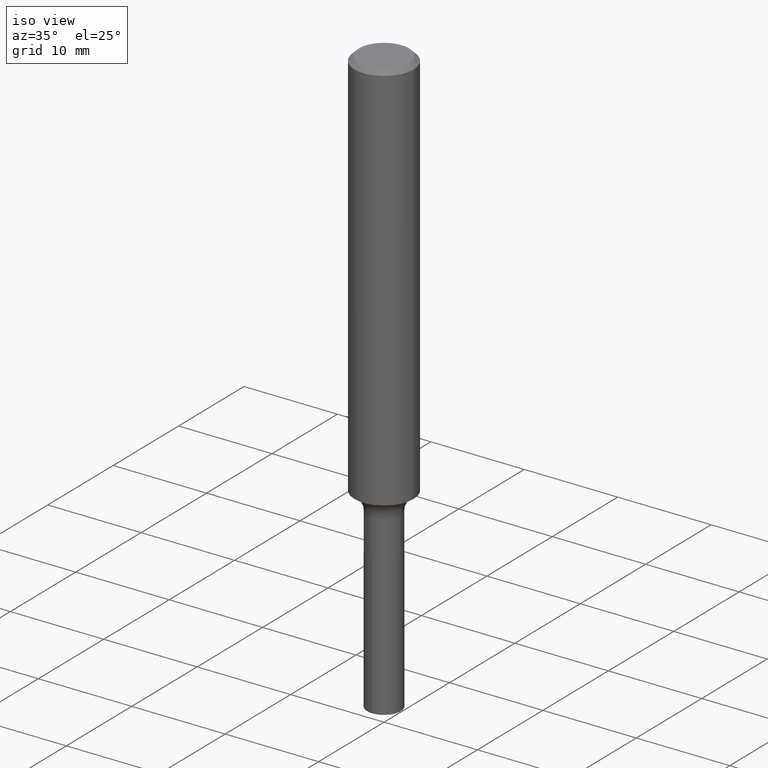
[diagram: clean part render]
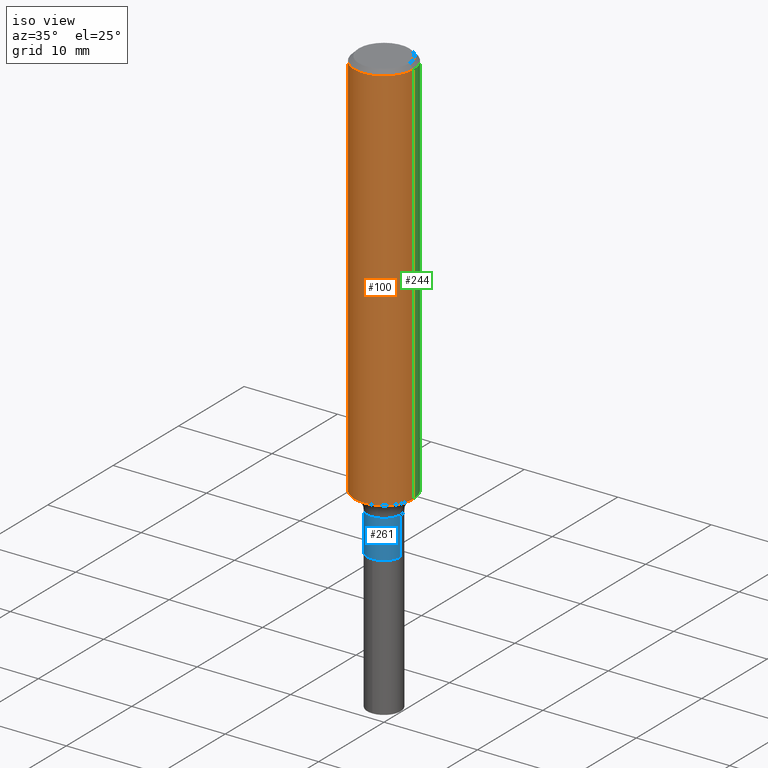
[diagram: same view with three faces highlighted in distinct colors, each labeled with its STEP entity id]
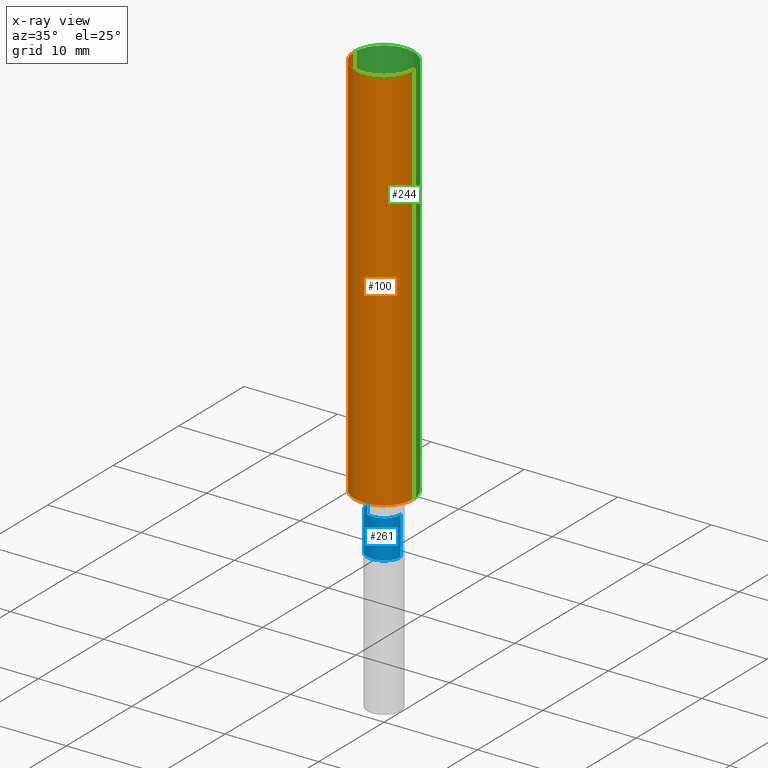
[diagram: x-ray of the same camera — body ghosted, the three highlighted faces saturated]
A machine part, iso view with three faces highlighted in distinct colors.
The next image is the same camera in x-ray (body ghosted, the three faces saturated) — at least one of them is partly hidden behind the body in this view.
Their STEP definitions:

[orange] entity #100 — the highlighted cylindrical surface (edge-blend (fillet) strip) has radius 3.175 mm, axis along (-0, 0, 1).
#16 = EDGE_CURVE ( 'NONE', #392, #45, #216, .T. ) ;
#22 = DIRECTION ( 'NONE',  ( 1.000000000000000000, -6.982962677686267499E-15, 0.000000000000000000 ) ) ;
#23 = FACE_OUTER_BOUND ( 'NONE', #194, .T. ) ;
#29 = DIRECTION ( 'NONE',  ( 1.000000000000000000, -6.982962677686266711E-15, 0.000000000000000000 ) ) ;
#45 = VERTEX_POINT ( 'NONE', #442 ) ;
#62 = CARTESIAN_POINT ( 'NONE',  ( 4.585254011597164750E-31, -6.546527510330946532E-17, -0.01875000000000013808 ) ) ;
#67 = ORIENTED_EDGE ( 'NONE', *, *, #290, .F. ) ;
#79 = CARTESIAN_POINT ( 'NONE',  ( 0.1250000000000001110, -8.728703347107841277E-16, 6.095220969744924646E-30 ) ) ;
#100 = ADVANCED_FACE ( 'NONE', ( #23 ), #133, .T. ) ;
#113 = ORIENTED_EDGE ( 'NONE', *, *, #483, .T. ) ;
#114 = VECTOR ( 'NONE', #394, 39.37007874015748143 ) ;
#127 = DIRECTION ( 'NONE',  ( -2.445468806185136597E-29, 3.491481338843145583E-15, 1.000000000000000000 ) ) ;
#133 = CYLINDRICAL_SURFACE ( 'NONE', #346, 0.1250000000000001110 ) ;
#158 = CARTESIAN_POINT ( 'NONE',  ( 0.1250000000000001388, -6.649336746390085607E-15, -1.654445735515015947 ) ) ;
#165 = EDGE_CURVE ( 'NONE', #400, #45, #446, .T. ) ;
#193 = CARTESIAN_POINT ( 'NONE',  ( -0.1250000000000000000, -2.032787423691178108E-15, -0.01875000000000013808 ) ) ;
#194 = EDGE_LOOP ( 'NONE', ( #67, #113, #250, #237 ) ) ;
#197 = VECTOR ( 'NONE', #444, 39.37007874015748143 ) ;
#214 = AXIS2_PLACEMENT_3D ( 'NONE', #62, #291, #29 ) ;
#216 = LINE ( 'NONE', #79, #197 ) ;
#236 = LINE ( 'NONE', #383, #114 ) ;
#237 = ORIENTED_EDGE ( 'NONE', *, *, #165, .F. ) ;
#241 = AXIS2_PLACEMENT_3D ( 'NONE', #313, #127, #22 ) ;
#250 = ORIENTED_EDGE ( 'NONE', *, *, #16, .T. ) ;
#253 = DIRECTION ( 'NONE',  ( 1.000000000000000000, -6.982962677686266711E-15, 4.876176775795935232E-29 ) ) ;
#289 = DIRECTION ( 'NONE',  ( -2.445468806185136597E-29, 3.491481338843145583E-15, 1.000000000000000000 ) ) ;
#290 = EDGE_CURVE ( 'NONE', #421, #400, #236, .T. ) ;
#291 = DIRECTION ( 'NONE',  ( -2.445468806185136597E-29, 3.491481338843145583E-15, 1.000000000000000000 ) ) ;
#313 = CARTESIAN_POINT ( 'NONE',  ( 4.045895437727996647E-29, -5.776466411679300691E-15, -1.654445735515015947 ) ) ;
#325 = CARTESIAN_POINT ( 'NONE',  ( 0.000000000000000000, 0.000000000000000000, 0.000000000000000000 ) ) ;
#345 = CARTESIAN_POINT ( 'NONE',  ( -0.1250000000000001388, -4.888287991979174669E-15, -1.654445735515015947 ) ) ;
#346 = AXIS2_PLACEMENT_3D ( 'NONE', #325, #289, #253 ) ;
#354 = CIRCLE ( 'NONE', #241, 0.1250000000000001943 ) ;
#383 = CARTESIAN_POINT ( 'NONE',  ( -0.1250000000000001110, 8.881784197001260212E-16, -6.148668862818637832E-30 ) ) ;
#392 = VERTEX_POINT ( 'NONE', #158 ) ;
#394 = DIRECTION ( 'NONE',  ( -2.445468806185136877E-29, 3.491481338843145188E-15, 1.000000000000000000 ) ) ;
#400 = VERTEX_POINT ( 'NONE', #193 ) ;
#421 = VERTEX_POINT ( 'NONE', #345 ) ;
#442 = CARTESIAN_POINT ( 'NONE',  ( 0.1250000000000000000, -9.383356098140928781E-16, -0.01875000000000013808 ) ) ;
#444 = DIRECTION ( 'NONE',  ( -2.445468806185136877E-29, 3.491481338843145188E-15, 1.000000000000000000 ) ) ;
#446 = CIRCLE ( 'NONE', #214, 0.1250000000000000000 ) ;
#483 = EDGE_CURVE ( 'NONE', #421, #392, #354, .T. ) ;

[blue] entity #261 — the highlighted cylindrical surface (edge-blend (fillet) strip) has radius 1.7844 mm, axis along (-0, 0, 1).
#1 = CARTESIAN_POINT ( 'NONE',  ( -0.07025000000000000688, 4.991562718714704295E-16, -3.455551900904071661E-30 ) ) ;
#9 = DIRECTION ( 'NONE',  ( -2.445468806185136877E-29, 3.491481338843145188E-15, 1.000000000000000000 ) ) ;
#18 = VERTEX_POINT ( 'NONE', #50 ) ;
#33 = CYLINDRICAL_SURFACE ( 'NONE', #349, 0.07025000000000000688 ) ;
#36 = EDGE_CURVE ( 'NONE', #469, #271, #101, .T. ) ;
#39 = VERTEX_POINT ( 'NONE', #319 ) ;
#50 = CARTESIAN_POINT ( 'NONE',  ( 0.07025000000000002076, -7.089452858521007616E-15, -1.890000000000000346 ) ) ;
#61 = CARTESIAN_POINT ( 'NONE',  ( 0.000000000000000000, 0.000000000000000000, 0.000000000000000000 ) ) ;
#92 = FACE_OUTER_BOUND ( 'NONE', #462, .T. ) ;
#101 = CIRCLE ( 'NONE', #367, 0.07024999999999999301 ) ;
#112 = DIRECTION ( 'NONE',  ( -2.445468806185136877E-29, 3.491481338843145188E-15, 1.000000000000000000 ) ) ;
#115 = EDGE_CURVE ( 'NONE', #39, #18, #415, .T. ) ;
#152 = ORIENTED_EDGE ( 'NONE', *, *, #36, .F. ) ;
#153 = VECTOR ( 'NONE', #112, 39.37007874015748143 ) ;
#154 = LINE ( 'NONE', #461, #153 ) ;
#156 = LINE ( 'NONE', #1, #334 ) ;
#195 = AXIS2_PLACEMENT_3D ( 'NONE', #438, #262, #374 ) ;
#199 = ORIENTED_EDGE ( 'NONE', *, *, #115, .T. ) ;
#226 = DIRECTION ( 'NONE',  ( -2.445468806185136597E-29, 3.491481338843145583E-15, 1.000000000000000000 ) ) ;
#233 = ORIENTED_EDGE ( 'NONE', *, *, #388, .F. ) ;
#261 = ADVANCED_FACE ( 'NONE', ( #92 ), #33, .T. ) ;
#262 = DIRECTION ( 'NONE',  ( -2.445468806185136597E-29, 3.491481338843145583E-15, 1.000000000000000000 ) ) ;
#271 = VERTEX_POINT ( 'NONE', #372 ) ;
#279 = ORIENTED_EDGE ( 'NONE', *, *, #439, .T. ) ;
#287 = CARTESIAN_POINT ( 'NONE',  ( 4.227971019013483248E-29, -6.036422086725915643E-15, -1.728900000000000325 ) ) ;
#319 = CARTESIAN_POINT ( 'NONE',  ( -0.07025000000000002076, -5.818504636698260679E-15, -1.890000000000000346 ) ) ;
#334 = VECTOR ( 'NONE', #9, 39.37007874015748143 ) ;
#349 = AXIS2_PLACEMENT_3D ( 'NONE', #61, #226, #410 ) ;
#367 = AXIS2_PLACEMENT_3D ( 'NONE', #287, #434, #404 ) ;
#372 = CARTESIAN_POINT ( 'NONE',  ( 0.07024999999999999301, -6.526975214833375500E-15, -1.728900000000000325 ) ) ;
#374 = DIRECTION ( 'NONE',  ( 1.000000000000000000, -6.982962677686272233E-15, 0.000000000000000000 ) ) ;
#388 = EDGE_CURVE ( 'NONE', #39, #469, #156, .T. ) ;
#396 = CARTESIAN_POINT ( 'NONE',  ( -0.07024999999999999301, -5.818504636698260679E-15, -1.728900000000000325 ) ) ;
#404 = DIRECTION ( 'NONE',  ( 1.000000000000000000, -6.982962677686260400E-15, 0.000000000000000000 ) ) ;
#410 = DIRECTION ( 'NONE',  ( 1.000000000000000000, -6.982962677686265922E-15, 4.876176775795935232E-29 ) ) ;
#415 = CIRCLE ( 'NONE', #195, 0.07025000000000002076 ) ;
#434 = DIRECTION ( 'NONE',  ( -2.445468806185136597E-29, 3.491481338843145583E-15, 1.000000000000000000 ) ) ;
#438 = CARTESIAN_POINT ( 'NONE',  ( 4.621936043689908997E-29, -6.598899730413546969E-15, -1.890000000000000346 ) ) ;
#439 = EDGE_CURVE ( 'NONE', #18, #271, #154, .T. ) ;
#461 = CARTESIAN_POINT ( 'NONE',  ( 0.07025000000000000688, -4.905531281074602522E-16, 3.425514184996644866E-30 ) ) ;
#462 = EDGE_LOOP ( 'NONE', ( #233, #199, #279, #152 ) ) ;
#469 = VERTEX_POINT ( 'NONE', #396 ) ;

[green] entity #244 — the highlighted cylindrical surface (edge-blend (fillet) strip) has radius 3.175 mm, axis along (-0, 0, 1).
#16 = EDGE_CURVE ( 'NONE', #392, #45, #216, .T. ) ;
#30 = FACE_OUTER_BOUND ( 'NONE', #373, .T. ) ;
#37 = CIRCLE ( 'NONE', #295, 0.1250000000000000000 ) ;
#45 = VERTEX_POINT ( 'NONE', #442 ) ;
#51 = AXIS2_PLACEMENT_3D ( 'NONE', #333, #95, #489 ) ;
#64 = CARTESIAN_POINT ( 'NONE',  ( 4.585254011597164750E-31, -6.546527510330946532E-17, -0.01875000000000013808 ) ) ;
#79 = CARTESIAN_POINT ( 'NONE',  ( 0.1250000000000001110, -8.728703347107841277E-16, 6.095220969744924646E-30 ) ) ;
#90 = ORIENTED_EDGE ( 'NONE', *, *, #290, .T. ) ;
#95 = DIRECTION ( 'NONE',  ( -2.445468806185136597E-29, 3.491481338843145583E-15, 1.000000000000000000 ) ) ;
#114 = VECTOR ( 'NONE', #394, 39.37007874015748143 ) ;
#119 = AXIS2_PLACEMENT_3D ( 'NONE', #477, #401, #315 ) ;
#120 = DIRECTION ( 'NONE',  ( -2.445468806185136597E-29, 3.491481338843145583E-15, 1.000000000000000000 ) ) ;
#158 = CARTESIAN_POINT ( 'NONE',  ( 0.1250000000000001388, -6.649336746390085607E-15, -1.654445735515015947 ) ) ;
#184 = CYLINDRICAL_SURFACE ( 'NONE', #51, 0.1250000000000001110 ) ;
#185 = CIRCLE ( 'NONE', #119, 0.1250000000000001943 ) ;
#193 = CARTESIAN_POINT ( 'NONE',  ( -0.1250000000000000000, -2.032787423691178108E-15, -0.01875000000000013808 ) ) ;
#197 = VECTOR ( 'NONE', #444, 39.37007874015748143 ) ;
#216 = LINE ( 'NONE', #79, #197 ) ;
#236 = LINE ( 'NONE', #383, #114 ) ;
#243 = ORIENTED_EDGE ( 'NONE', *, *, #490, .T. ) ;
#244 = ADVANCED_FACE ( 'NONE', ( #30 ), #184, .T. ) ;
#290 = EDGE_CURVE ( 'NONE', #421, #400, #236, .T. ) ;
#295 = AXIS2_PLACEMENT_3D ( 'NONE', #64, #120, #464 ) ;
#315 = DIRECTION ( 'NONE',  ( 1.000000000000000000, -6.982962677686267499E-15, 0.000000000000000000 ) ) ;
#333 = CARTESIAN_POINT ( 'NONE',  ( 0.000000000000000000, 0.000000000000000000, 0.000000000000000000 ) ) ;
#344 = ORIENTED_EDGE ( 'NONE', *, *, #16, .F. ) ;
#345 = CARTESIAN_POINT ( 'NONE',  ( -0.1250000000000001388, -4.888287991979174669E-15, -1.654445735515015947 ) ) ;
#347 = ORIENTED_EDGE ( 'NONE', *, *, #426, .F. ) ;
#373 = EDGE_LOOP ( 'NONE', ( #243, #90, #347, #344 ) ) ;
#383 = CARTESIAN_POINT ( 'NONE',  ( -0.1250000000000001110, 8.881784197001260212E-16, -6.148668862818637832E-30 ) ) ;
#392 = VERTEX_POINT ( 'NONE', #158 ) ;
#394 = DIRECTION ( 'NONE',  ( -2.445468806185136877E-29, 3.491481338843145188E-15, 1.000000000000000000 ) ) ;
#400 = VERTEX_POINT ( 'NONE', #193 ) ;
#401 = DIRECTION ( 'NONE',  ( -2.445468806185136597E-29, 3.491481338843145583E-15, 1.000000000000000000 ) ) ;
#421 = VERTEX_POINT ( 'NONE', #345 ) ;
#426 = EDGE_CURVE ( 'NONE', #45, #400, #37, .T. ) ;
#442 = CARTESIAN_POINT ( 'NONE',  ( 0.1250000000000000000, -9.383356098140928781E-16, -0.01875000000000013808 ) ) ;
#444 = DIRECTION ( 'NONE',  ( -2.445468806185136877E-29, 3.491481338843145188E-15, 1.000000000000000000 ) ) ;
#464 = DIRECTION ( 'NONE',  ( 1.000000000000000000, -6.982962677686266711E-15, 0.000000000000000000 ) ) ;
#477 = CARTESIAN_POINT ( 'NONE',  ( 4.045895437727996647E-29, -5.776466411679300691E-15, -1.654445735515015947 ) ) ;
#489 = DIRECTION ( 'NONE',  ( 1.000000000000000000, -6.982962677686266711E-15, 4.876176775795935232E-29 ) ) ;
#490 = EDGE_CURVE ( 'NONE', #392, #421, #185, .T. ) ;